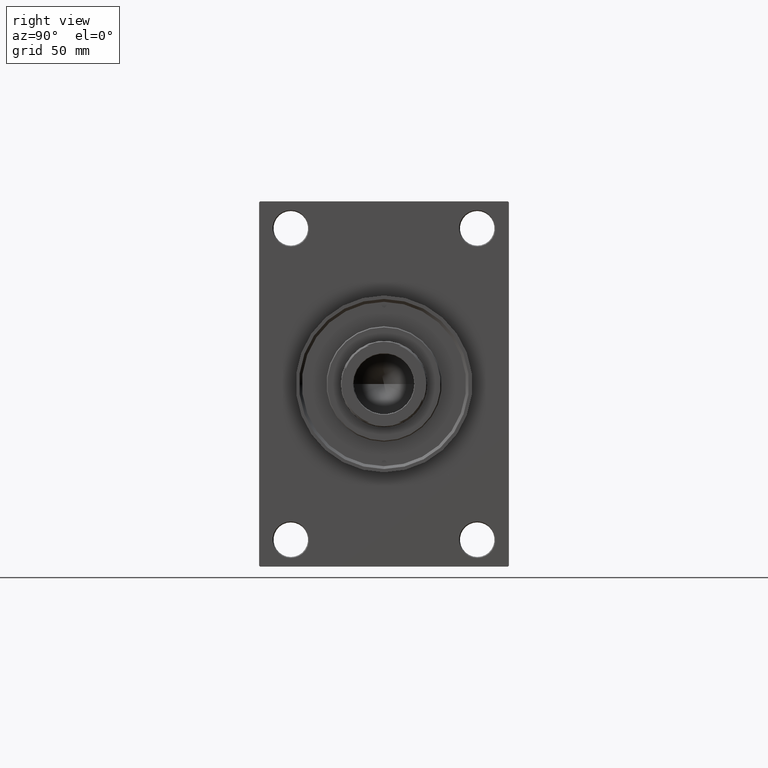
[diagram: clean part render]
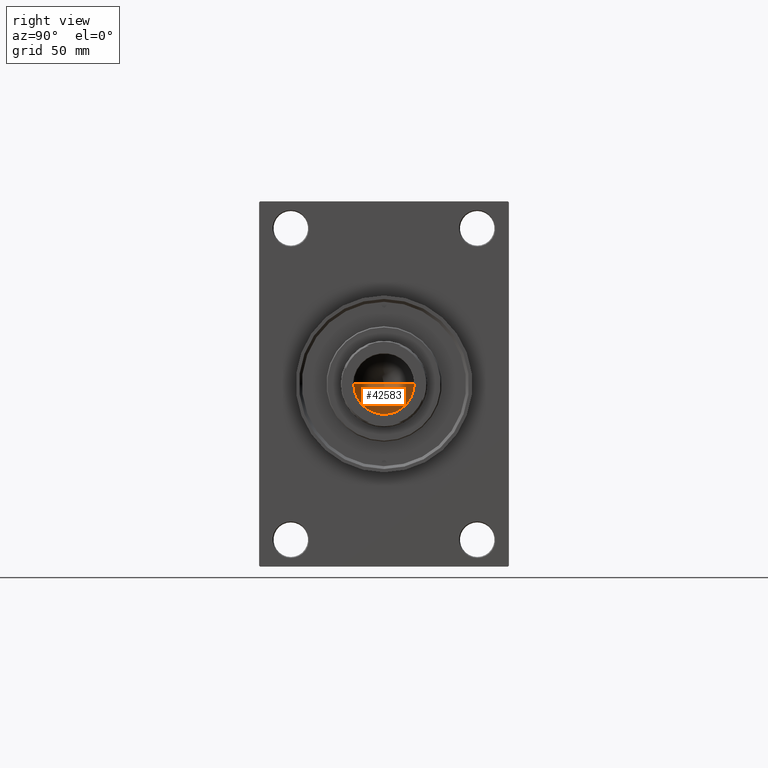
[diagram: same view with one face highlighted and labeled with its STEP entity id]
A machine part, right view. The second image highlights one B-rep face of the part: STEP entity #42583.
In plain terms, the highlighted conical surface has half-angle 59 deg.
Its self-contained STEP definition (entity closure, byte-faithful):
#197 = EDGE_CURVE ( 'NONE', #23513, #11697, #19573, .T. ) ;
#2030 = ORIENTED_EDGE ( 'NONE', *, *, #197, .F. ) ;
#5150 = FACE_OUTER_BOUND ( 'NONE', #47609, .T. ) ;
#7624 = DIRECTION ( 'NONE',  ( 0.8571673007021112234, 0.000000000000000000, 0.5150380749100560429 ) ) ;
#7786 = AXIS2_PLACEMENT_3D ( 'NONE', #19003, #44902, #8125 ) ;
#8125 = DIRECTION ( 'NONE',  ( 1.000000000000000000, 0.000000000000000000, 0.000000000000000000 ) ) ;
#10948 = CONICAL_SURFACE ( 'NONE', #16318, 15.74999999999998934, 1.029744258676652313 ) ;
#11697 = VERTEX_POINT ( 'NONE', #36819 ) ;
#13377 = CARTESIAN_POINT ( 'NONE',  ( -1.584115414415908206E-14, 0.000000000000000000, 173.5364452503158930 ) ) ;
#15463 = CARTESIAN_POINT ( 'NONE',  ( -15.74999999999998934, 1.928818708657080161E-15, 183.0000000000000000 ) ) ;
#16318 = AXIS2_PLACEMENT_3D ( 'NONE', #29930, #44691, #41073 ) ;
#19003 = CARTESIAN_POINT ( 'NONE',  ( 0.000000000000000000, 0.000000000000000000, 183.0000000000000000 ) ) ;
#19573 = LINE ( 'NONE', #15463, #27645 ) ;
#23513 = VERTEX_POINT ( 'NONE', #13377 ) ;
#26477 = ORIENTED_EDGE ( 'NONE', *, *, #43686, .T. ) ;
#26528 = EDGE_CURVE ( 'NONE', #26829, #11697, #28656, .T. ) ;
#26829 = VERTEX_POINT ( 'NONE', #40277 ) ;
#27645 = VECTOR ( 'NONE', #37507, 1000.000000000000000 ) ;
#28656 = CIRCLE ( 'NONE', #7786, 15.74999999999998934 ) ;
#29930 = CARTESIAN_POINT ( 'NONE',  ( 0.000000000000000000, 0.000000000000000000, 183.0000000000000000 ) ) ;
#30586 = CARTESIAN_POINT ( 'NONE',  ( 15.74999999999998934, 0.000000000000000000, 183.0000000000000000 ) ) ;
#33281 = LINE ( 'NONE', #30586, #43424 ) ;
#35409 = ORIENTED_EDGE ( 'NONE', *, *, #26528, .T. ) ;
#36819 = CARTESIAN_POINT ( 'NONE',  ( -15.74999999999998934, 1.928818708657080161E-15, 183.0000000000000000 ) ) ;
#37507 = DIRECTION ( 'NONE',  ( -0.8571673007021112234, 1.049727191138617340E-16, 0.5150380749100560429 ) ) ;
#40277 = CARTESIAN_POINT ( 'NONE',  ( 15.74999999999998934, 0.000000000000000000, 183.0000000000000000 ) ) ;
#41073 = DIRECTION ( 'NONE',  ( 1.000000000000000000, 0.000000000000000000, 0.000000000000000000 ) ) ;
#42583 = ADVANCED_FACE ( 'NONE', ( #5150 ), #10948, .F. ) ;
#43424 = VECTOR ( 'NONE', #7624, 1000.000000000000000 ) ;
#43686 = EDGE_CURVE ( 'NONE', #23513, #26829, #33281, .T. ) ;
#44691 = DIRECTION ( 'NONE',  ( -0.000000000000000000, -0.000000000000000000, 1.000000000000000000 ) ) ;
#44902 = DIRECTION ( 'NONE',  ( -0.000000000000000000, -0.000000000000000000, 1.000000000000000000 ) ) ;
#47609 = EDGE_LOOP ( 'NONE', ( #2030, #26477, #35409 ) ) ;